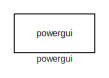
[diagram: root canvas - part 1/2, top left region]
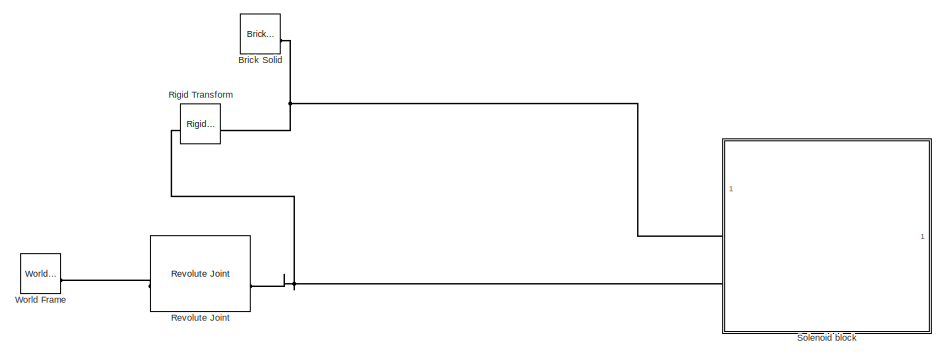
[diagram: root canvas - part 2/2, bottom right region]
MODEL slx_4be915326659
KIND model
CONFIG AbsTol = auto
CONFIG EnableMultiTasking = off
CONFIG FixedStep = auto
CONFIG MaxStep = auto
CONFIG MinStep = auto
CONFIG RelTol = 1e-3
CONFIG SampleTimeConstraint = Unconstrained
CONFIG SolverName = VariableStepAuto
CONFIG StartTime = 0.0
CONFIG StopTime = 10.0
BLOCK [Reference] Brick Solid  REF=sm_lib/Body Elements/Brick Solid
  SourceBlock = sm_lib/Body Elements/Brick Solid
  SourceType = Brick Solid
BLOCK [Reference] Revolute Joint  REF=sm_lib/Joints/Revolute Joint
  SourceBlock = sm_lib/Joints/Revolute Joint
  SourceType = Revolute Joint
BLOCK [Reference] Rigid Transform  REF=sm_lib/Frames and
Transforms/Rigid
Transform
  SourceBlock = sm_lib/Frames and\nTransforms/Rigid\nTransform
  SourceType = Rigid\nTransform
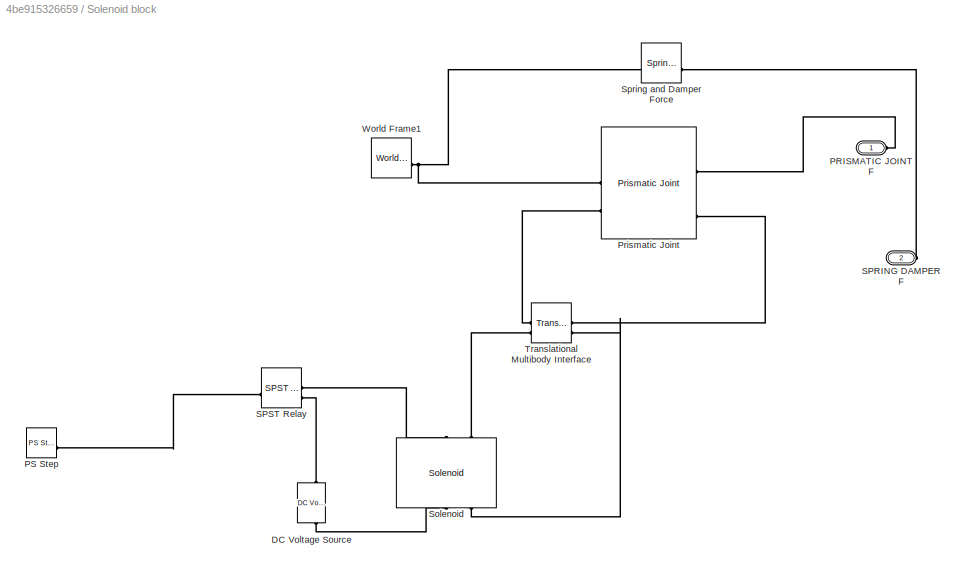
BLOCK [SubSystem] Solenoid block
BLOCK [Reference] Solenoid block/DC Voltage Source  REF=ee_lib/Additional
Components/SPICE Sources/DC Voltage Source
  NameLocation = right
  SourceBlock = ee_lib/Additional\nComponents/SPICE Sources/DC Voltage Source
  SourceType = DC Voltage Source
BLOCK [PMIOPort] Solenoid block/PRISMATIC JOINT F
  Side = Left
BLOCK [Reference] Solenoid block/PS Step  REF=fl_lib/Physical Signals/Sources/PS Step
  SourceBlock = fl_lib/Physical Signals/Sources/PS Step
  SourceType = PS Step
BLOCK [Reference] Solenoid block/Prismatic Joint  REF=sm_lib/Joints/Prismatic
Joint
  SourceBlock = sm_lib/Joints/Prismatic\nJoint
  SourceType = Prismatic\nJoint
BLOCK [PMIOPort] Solenoid block/SPRING DAMPER F
  Port = 2
  Side = Left
BLOCK [Reference] Solenoid block/SPST Relay  REF=ee_lib/Switches & Breakers/Relays/SPST Relay
  SourceBlock = ee_lib/Switches & Breakers/Relays/SPST Relay
  SourceType = SPST Relay
BLOCK [Reference] Solenoid block/Solenoid  REF=ee_lib/Electromechanical/Mechatronic
Actuators/Solenoid
  NameLocation = right
  SourceBlock = ee_lib/Electromechanical/Mechatronic\nActuators/Solenoid
  SourceType = Solenoid
BLOCK [Reference] Solenoid block/Spring and Damper Force  REF=sm_lib/Forces and
Torques/Spring and
Damper Force
  SourceBlock = sm_lib/Forces and\nTorques/Spring and\nDamper Force
  SourceType = Spring and\nDamper Force
BLOCK [Reference] Solenoid block/Translational Multibody Interface  REF=fl_lib/Mechanical/Multibody Interfaces/Translational
Multibody Interface
  SourceBlock = fl_lib/Mechanical/Multibody Interfaces/Translational\nMultibody Interface
  SourceType = Translational\nMultibody Interface
BLOCK [Reference] Solenoid block/World Frame1  REF=sm_lib/Frames and
Transforms/World Frame
  SourceBlock = sm_lib/Frames and\nTransforms/World Frame
  SourceType = World Frame
BLOCK [Reference] World Frame  REF=sm_lib/Frames and
Transforms/World Frame
  SourceBlock = sm_lib/Frames and\nTransforms/World Frame
  SourceType = World Frame
BLOCK [Reference] powergui  REF=spspowerguiLib/powergui
  LibrarySourceBlock = sps_lib/powergui
  Priority = 1
  SourceBlock = spspowerguiLib/powergui
  SourceType = PSB option menu block
PNET net1: Brick Solid:RConn1 -- Rigid Transform:RConn1 -- Solenoid block:LConn1
PLINE Revolute Joint:LConn1 -- World Frame:RConn1
PNET net2: Revolute Joint:RConn1 -- Rigid Transform:LConn1 -- Solenoid block:LConn2
PLINE Solenoid block/DC Voltage Source:LConn1 -- Solenoid block/SPST Relay:RConn2
PLINE Solenoid block/DC Voltage Source:RConn1 -- Solenoid block/Solenoid:RConn1
PLINE Solenoid block/PRISMATIC JOINT F:RConn1 -- Solenoid block/Prismatic Joint:RConn1
PLINE Solenoid block/PS Step:RConn1 -- Solenoid block/SPST Relay:LConn1
PNET net3: Solenoid block/Prismatic Joint:LConn1 -- Solenoid block/Spring and Damper Force:LConn1 -- Solenoid block/World Frame1:RConn1
PLINE Solenoid block/Prismatic Joint:LConn2 -- Solenoid block/Translational Multibody Interface:LConn1
PLINE Solenoid block/Prismatic Joint:RConn3 -- Solenoid block/Translational Multibody Interface:RConn1
PLINE Solenoid block/SPRING DAMPER F:RConn1 -- Solenoid block/Spring and Damper Force:RConn1
PLINE Solenoid block/SPST Relay:RConn1 -- Solenoid block/Solenoid:LConn1
PLINE Solenoid block/Solenoid:LConn2 -- Solenoid block/Translational Multibody Interface:LConn2
PLINE Solenoid block/Solenoid:RConn2 -- Solenoid block/Translational Multibody Interface:RConn2
note: PNET lines group multi-terminal physical nets as a canonical sorted terminal list (undirected conserving connections); 2-terminal nets keep the pairwise PLINE form
